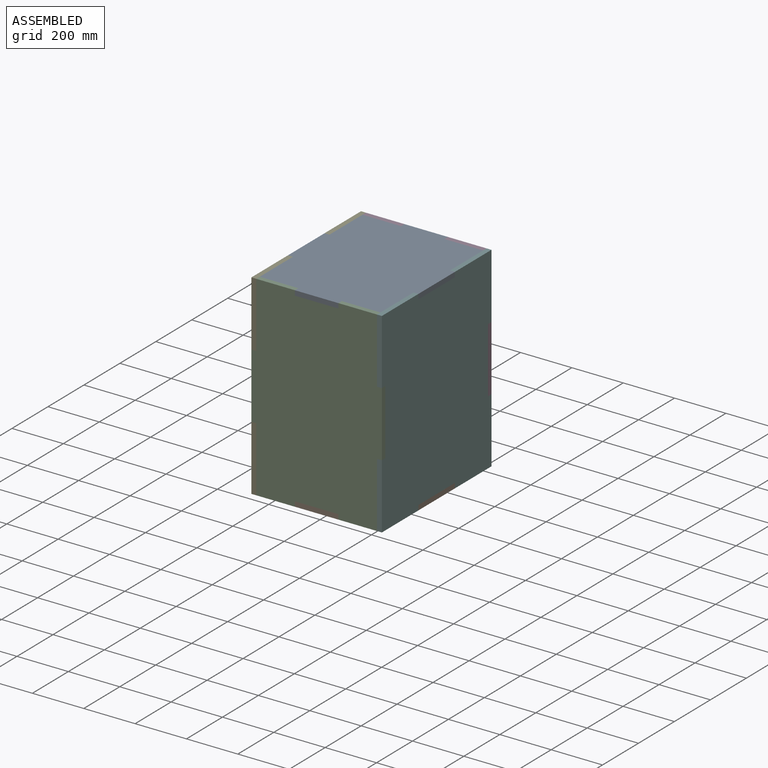
[diagram: assembled view]
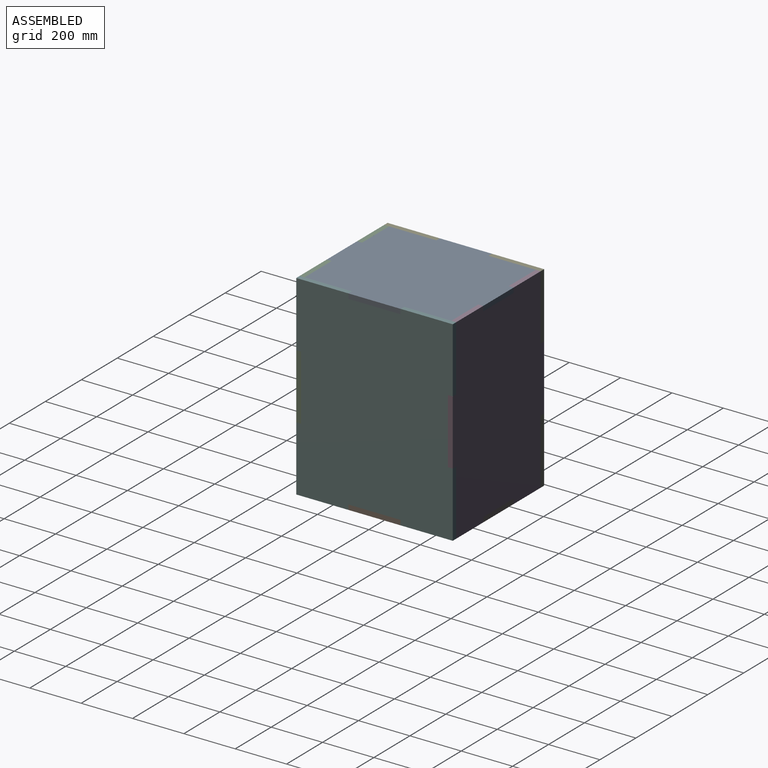
[diagram: assembled view, second angle]
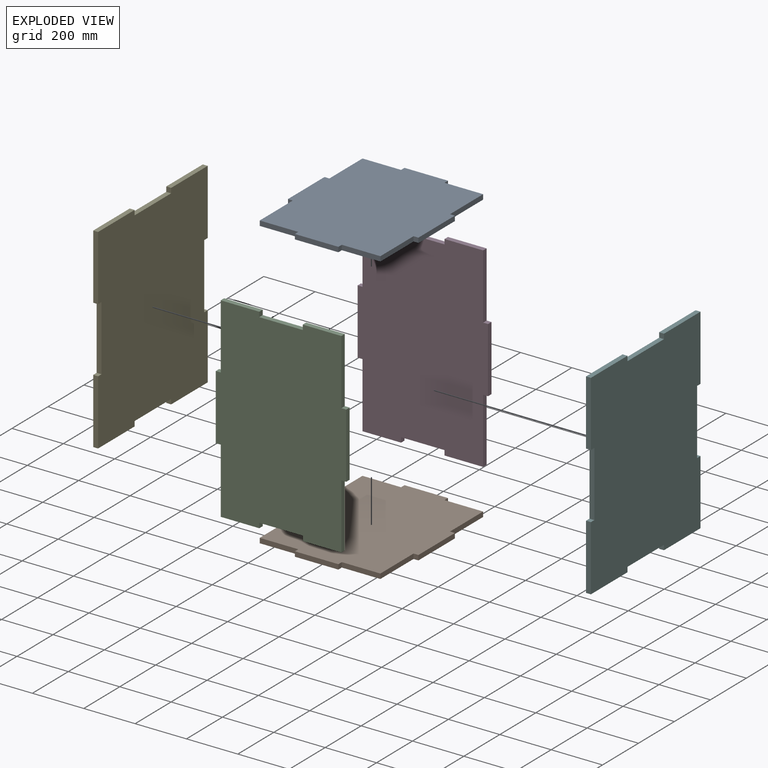
[diagram: exploded view]
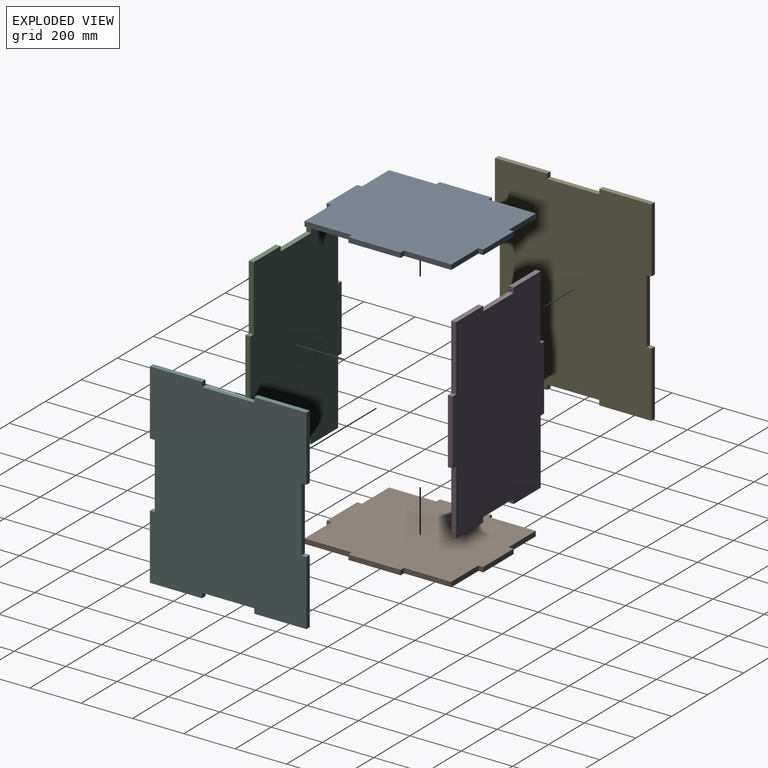
[diagram: exploded view, second angle]
ASSEMBLY  parts=6 mates=5
PART A: 22 faces, bbox 508x609.6x19.1 mm
  f0: plane 184.15x19.05mm, normal (1,0,0), area 3508.1mm2, adj f1,f19,f20,f21
  f1: plane 19.05x19.05mm, normal (0,-1,0), area 362.9mm2, adj f0,f2,f20,f21
  f2: plane 203.2x19.05mm, normal (1,0,0), area 3871mm2, adj f1,f3,f20,f21
  f3: plane 19.05x19.05mm, normal (0,1,0), area 362.9mm2, adj f2,f4,f20,f21
  f4: plane 184.15x19.05mm, normal (1,0,0), area 3508.1mm2, adj f3,f5,f20,f21
  f5: plane 150.28x19.05mm, normal (0,1,0), area 2862.9mm2, adj f4,f6,f20,f21
  f6: plane 19.05x19.05mm, normal (1,0,0), area 362.9mm2, adj f5,f7,f20,f21
  f7: plane 169.33x19.05mm, normal (0,1,0), area 3225.8mm2, adj f6,f8,f20,f21
  f8: plane 19.05x19.05mm, normal (-1,0,0), area 362.9mm2, adj f7,f9,f20,f21
  f9: plane 150.28x19.05mm, normal (0,1,0), area 2862.9mm2, adj f8,f10,f20,f21
  f10: plane 184.15x19.05mm, normal (-1,0,0), area 3508.1mm2, adj f9,f11,f20,f21
  f11: plane 19.05x19.05mm, normal (0,1,0), area 362.9mm2, adj f10,f12,f20,f21
  f12: plane 203.2x19.05mm, normal (-1,0,0), area 3871mm2, adj f11,f13,f20,f21
  f13: plane 19.05x19.05mm, normal (0,-1,0), area 362.9mm2, adj f12,f14,f20,f21
  f14: plane 184.15x19.05mm, normal (-1,0,0), area 3508.1mm2, adj f13,f15,f20,f21
  f15: plane 150.28x19.05mm, normal (0,-1,0), area 2862.9mm2, adj f14,f16,f20,f21
  f16: plane 19.05x19.05mm, normal (-1,0,0), area 362.9mm2, adj f15,f17,f20,f21
  f17: plane 169.33x19.05mm, normal (0,-1,0), area 3225.8mm2, adj f16,f18,f20,f21
  f18: plane 19.05x19.05mm, normal (1,0,0), area 362.9mm2, adj f17,f19,f20,f21
  f19: plane 150.28x19.05mm, normal (0,-1,0), area 2862.9mm2, adj f0,f18,f20,f21
  f20: plane 609.6x508mm, normal (0,0,1), area 282741.4mm2, adj f0,f1,f2,f3,f4,f5,f6,f7
  f21: plane 609.6x508mm, normal (0,0,-1), area 282741.4mm2, adj f0,f1,f2,f3,f4,f5,f6,f7
PART B: same geometry as A
PART C: 22 faces, bbox 508x762x19.1 mm
  f0: plane 254x19.05mm, normal (1,0,0), area 4838.7mm2, adj f1,f19,f20,f21
  f1: plane 150.28x19.05mm, normal (0,1,0), area 2862.9mm2, adj f0,f2,f20,f21
  f2: plane 19.05x19.05mm, normal (-1,0,0), area 362.9mm2, adj f1,f3,f20,f21
  f3: plane 169.33x19.05mm, normal (0,1,0), area 3225.8mm2, adj f2,f4,f20,f21
  f4: plane 19.05x19.05mm, normal (1,0,0), area 362.9mm2, adj f3,f5,f20,f21
  f5: plane 150.28x19.05mm, normal (0,1,0), area 2862.9mm2, adj f4,f6,f20,f21
  f6: plane 254x19.05mm, normal (-1,0,0), area 4838.7mm2, adj f5,f7,f20,f21
  f7: plane 19.05x19.05mm, normal (0,1,0), area 362.9mm2, adj f6,f8,f20,f21
  f8: plane 254x19.05mm, normal (-1,0,0), area 4838.7mm2, adj f7,f9,f20,f21
  f9: plane 19.05x19.05mm, normal (0,-1,0), area 362.9mm2, adj f8,f10,f20,f21
  f10: plane 254x19.05mm, normal (-1,0,0), area 4838.7mm2, adj f9,f11,f20,f21
  f11: plane 150.28x19.05mm, normal (0,-1,0), area 2862.9mm2, adj f10,f12,f20,f21
  f12: plane 19.05x19.05mm, normal (1,0,0), area 362.9mm2, adj f11,f13,f20,f21
  f13: plane 169.33x19.05mm, normal (0,-1,0), area 3225.8mm2, adj f12,f14,f20,f21
  f14: plane 19.05x19.05mm, normal (-1,0,0), area 362.9mm2, adj f13,f15,f20,f21
  f15: plane 150.28x19.05mm, normal (0,-1,0), area 2862.9mm2, adj f14,f16,f20,f21
  f16: plane 254x19.05mm, normal (1,0,0), area 4838.7mm2, adj f15,f17,f20,f21
  f17: plane 19.05x19.05mm, normal (0,-1,0), area 362.9mm2, adj f16,f18,f20,f21
  f18: plane 254x19.05mm, normal (1,0,0), area 4838.7mm2, adj f17,f19,f20,f21
  f19: plane 19.05x19.05mm, normal (0,1,0), area 362.9mm2, adj f0,f18,f20,f21
  f20: plane 762x508mm, normal (0,0,1), area 361289.6mm2, adj f0,f1,f2,f3,f4,f5,f6,f7
  f21: plane 762x508mm, normal (0,0,-1), area 361289.6mm2, adj f0,f1,f2,f3,f4,f5,f6,f7
PART D: same geometry as C
PART E: 22 faces, bbox 762x609.6x19.1 mm
  f0: plane 254x19.05mm, normal (0,1,0), area 4838.7mm2, adj f1,f19,f20,f21
  f1: plane 19.05x19.05mm, normal (1,0,0), area 362.9mm2, adj f0,f2,f20,f21
  f2: plane 254x19.05mm, normal (0,1,0), area 4838.7mm2, adj f1,f3,f20,f21
  f3: plane 203.2x19.05mm, normal (-1,0,0), area 3871mm2, adj f2,f4,f20,f21
  f4: plane 19.05x19.05mm, normal (0,-1,0), area 362.9mm2, adj f3,f5,f20,f21
  f5: plane 203.2x19.05mm, normal (-1,0,0), area 3871mm2, adj f4,f6,f20,f21
  f6: plane 19.05x19.05mm, normal (0,1,0), area 362.9mm2, adj f5,f7,f20,f21
  f7: plane 203.2x19.05mm, normal (-1,0,0), area 3871mm2, adj f6,f8,f20,f21
  f8: plane 254x19.05mm, normal (0,-1,0), area 4838.7mm2, adj f7,f9,f20,f21
  f9: plane 19.05x19.05mm, normal (1,0,0), area 362.9mm2, adj f8,f10,f20,f21
  f10: plane 254x19.05mm, normal (0,-1,0), area 4838.7mm2, adj f9,f11,f20,f21
  f11: plane 19.05x19.05mm, normal (-1,0,0), area 362.9mm2, adj f10,f12,f20,f21
  f12: plane 254x19.05mm, normal (0,-1,0), area 4838.7mm2, adj f11,f13,f20,f21
  f13: plane 203.2x19.05mm, normal (1,0,0), area 3871mm2, adj f12,f14,f20,f21
  f14: plane 19.05x19.05mm, normal (0,1,0), area 362.9mm2, adj f13,f15,f20,f21
  f15: plane 203.2x19.05mm, normal (1,0,0), area 3871mm2, adj f14,f16,f20,f21
  f16: plane 19.05x19.05mm, normal (0,-1,0), area 362.9mm2, adj f15,f17,f20,f21
  f17: plane 203.2x19.05mm, normal (1,0,0), area 3871mm2, adj f16,f18,f20,f21
  f18: plane 254x19.05mm, normal (0,1,0), area 4838.7mm2, adj f17,f19,f20,f21
  f19: plane 19.05x19.05mm, normal (-1,0,0), area 362.9mm2, adj f0,f18,f20,f21
  f20: plane 762x609.6mm, normal (0,0,1), area 447095.9mm2, adj f0,f1,f2,f3,f4,f5,f6,f7
  f21: plane 762x609.6mm, normal (0,0,-1), area 447095.9mm2, adj f0,f1,f2,f3,f4,f5,f6,f7
PART F: same geometry as E
PLACE A rot(axis=(0,0,1),0deg) t=(0,0,742.95)mm
PLACE B rot(axis=(1,0,0),0deg) t=(0,0,0)mm
PLACE C rot(axis=(-1,0,0),90deg) t=(0,-304.8,1219.2)mm
PLACE D rot(axis=(1,0,0),90deg) t=(0,304.8,-457.2)mm
PLACE E rot(axis=(0,1,0),90deg) t=(-254,0,1168.4)mm
PLACE F rot(axis=(0,-1,0),90deg) t=(254,0,-406.4)mm
MATE fastened B.f17 <-> C.f21  axis (0,-1,0) through (-84.67,-304.8,19.05)mm
MATE fastened B.f7 <-> D.f21  axis (0,1,0) through (-84.67,304.8,19.05)mm
MATE fastened F.f21 <-> B.f2  axis (1,0,0) through (254,-101.6,19.05)mm
MATE fastened B.f12 <-> E.f21  axis (1,0,0) through (-254,-101.6,19.05)mm
MATE fastened A.f20 <-> D.f5  axis (0,0,1) through (-234.95,285.75,762)mm
